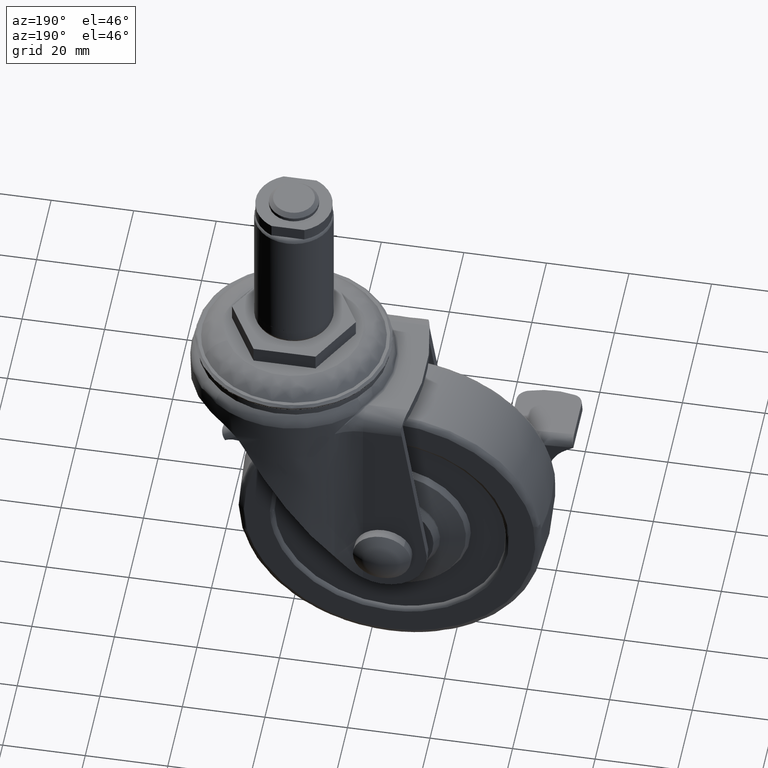
[diagram: clean part render]
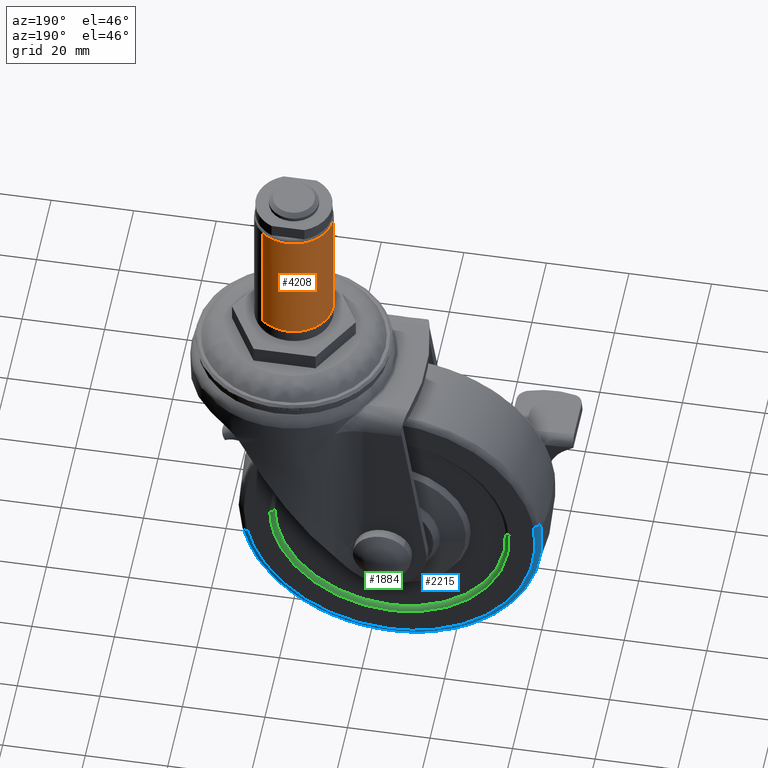
[diagram: same view with three faces highlighted in distinct colors, each labeled with its STEP entity id]
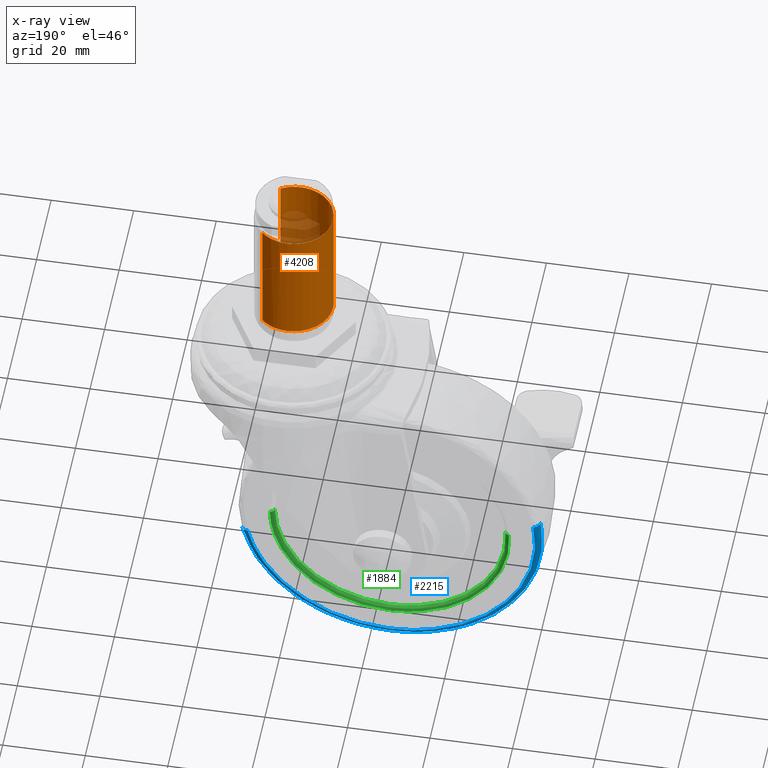
[diagram: x-ray of the same camera — body ghosted, the three highlighted faces saturated]
A machine part, auxiliary view with three faces highlighted in distinct colors.
The next image is the same camera in x-ray (body ghosted, the three faces saturated) — at least one of them is partly hidden behind the body in this view.
Their STEP definitions:

[orange] entity #4208 — the highlighted face is a freeform B-spline surface patch.
#4074=CARTESIAN_POINT('',(4.769181469671122,-8.216131273864388,34.650000002457759));
#4075=CARTESIAN_POINT('',(-1.300864478249105,-11.739584063252144,34.650000002457766));
#4076=CARTESIAN_POINT('',(-6.452255460974772,-6.972682730939943,34.650000002457759));
#4077=CARTESIAN_POINT('',(-13.424938191914716,-0.520427269965171,34.650000002457759));
#4078=CARTESIAN_POINT('',(-6.972682730939943,6.452255460974772,34.650000002457759));
#4079=CARTESIAN_POINT('',(-0.520427269965171,13.424938191914716,34.650000002457759));
#4080=CARTESIAN_POINT('',(6.452255460974772,6.972682730939943,34.650000002457759));
#4081=CARTESIAN_POINT('',(4.769181469671122,-8.216131273864388,3.131249999938439));
#4082=CARTESIAN_POINT('',(-1.300864478249105,-11.739584063252144,3.131249999938440));
#4083=CARTESIAN_POINT('',(-6.452255460974772,-6.972682730939943,3.131249999938440));
#4084=CARTESIAN_POINT('',(-13.424938191914716,-0.520427269965171,3.131249999938440));
#4085=CARTESIAN_POINT('',(-6.972682730939943,6.452255460974772,3.131249999938440));
#4086=CARTESIAN_POINT('',(-0.520427269965171,13.424938191914716,3.131249999938440));
#4087=CARTESIAN_POINT('',(6.452255460974772,6.972682730939943,3.131249999938440));
#4095=(BOUNDED_SURFACE()B_SPLINE_SURFACE(2,1,((#4074,#4081),(#4075,#4082),(#4076,#4083),(#4077,#4084),(#4078,#4085),(#4079,#4086),(#4080,#4087)),.UNSPECIFIED.,.F.,.F.,.U.)B_SPLINE_SURFACE_WITH_KNOTS((3,2,2,3),(2,2),(0.0,12.592085668725220,28.332192754631759,44.072299840538292),(0.0,31.518750002519319),.UNSPECIFIED.)GEOMETRIC_REPRESENTATION_ITEM()RATIONAL_B_SPLINE_SURFACE(((0.906274169979695,0.906274169979695),(0.765685424949238,0.765685424949238),(1.0,1.0),(0.707106781186548,0.707106781186548),(1.0,1.0),(0.707106781186548,0.707106781186548),(1.0,1.0)))REPRESENTATION_ITEM('')SURFACE());
#4096=CARTESIAN_POINT('',(4.769181486978870,-8.216130928227312,3.899999999999887));
#4097=VERTEX_POINT('',#4096);
#4098=CARTESIAN_POINT('',(-0.000001336962201,-9.499995000000007,3.899999999999889));
#4099=VERTEX_POINT('',#4098);
#4100=CARTESIAN_POINT('',(4.769181486978870,-8.216130928227312,3.899999999999887));
#4101=CARTESIAN_POINT('',(4.274068669553174,-8.503557439264624,3.899999999999865));
#4102=CARTESIAN_POINT('',(2.757907993458627,-9.209183270811405,3.899999999999938));
#4103=CARTESIAN_POINT('',(1.093102808955733,-9.500892481963195,3.899999999999859));
#4104=CARTESIAN_POINT('',(-0.000001336962201,-9.499995000000007,3.899999999999889));
#4105=B_SPLINE_CURVE_WITH_KNOTS('',3,(#4100,#4101,#4102,#4103,#4104),.UNSPECIFIED.,.F.,.U.,(4,1,4),(0.000000022680542,1.717525443122228,4.996410118853924),.UNSPECIFIED.);
#4106=EDGE_CURVE('',#4097,#4099,#4105,.T.);
#4107=ORIENTED_EDGE('',*,*,#4106,.F.);
#4108=CARTESIAN_POINT('',(4.769181341799346,-8.216131348089554,33.900000001508559));
#4109=VERTEX_POINT('',#4108);
#4110=CARTESIAN_POINT('',(4.769181341799346,-8.216131348089554,33.900000001508559));
#4111=CARTESIAN_POINT('',(4.769181486978870,-8.216130928227312,3.899999999999887));
#4112=QUASI_UNIFORM_CURVE('',1,(#4110,#4111),.UNSPECIFIED.,.F.,.U.);
#4113=EDGE_CURVE('',#4109,#4097,#4112,.T.);
#4114=ORIENTED_EDGE('',*,*,#4113,.F.);
#4115=CARTESIAN_POINT('',(-9.499995000000101,0.0,33.899999999999999));
#4116=VERTEX_POINT('',#4115);
#4117=CARTESIAN_POINT('',(4.769181341799346,-8.216131348089554,33.900000001508559));
#4118=CARTESIAN_POINT('',(4.141176161958145,-8.580826725709670,33.900000001347962));
#4119=CARTESIAN_POINT('',(3.088198529632862,-9.039825398080534,33.900000001098569));
#4120=CARTESIAN_POINT('',(1.367706738797754,-9.444587437297393,33.900000000735702));
#4121=CARTESIAN_POINT('',(-0.504491098449479,-9.570974776509496,33.900000000381603));
#4122=CARTESIAN_POINT('',(-2.724765889683806,-9.208033323142564,33.900000000028207));
#4123=CARTESIAN_POINT('',(-5.019608192661912,-8.194348691899199,33.899999999745589));
#4124=CARTESIAN_POINT('',(-6.855142791543369,-6.715923628427450,33.899999999606322));
#4125=CARTESIAN_POINT('',(-8.207257125943288,-4.925949209454362,33.899999999594492));
#4126=CARTESIAN_POINT('',(-9.216708898123610,-2.748862296472859,33.899999999694700));
#4127=CARTESIAN_POINT('',(-9.500582273796544,-1.037508678978437,33.899999999865273));
#4128=CARTESIAN_POINT('',(-9.499995000000101,0.0,33.899999999999999));
#4129=B_SPLINE_CURVE_WITH_KNOTS('',3,(#4117,#4118,#4119,#4120,#4121,#4122,#4123,#4124,#4125,#4126,#4127,#4128),.UNSPECIFIED.,.F.,.U.,(4,1,1,1,1,1,1,1,1,4),(0.000000248313764,2.178635957597741,3.423570252128243,5.291024068470502,7.780974131034943,10.115146189629989,12.760649374677129,14.783727150239359,16.806810351803360,19.919132221207750),.UNSPECIFIED.);
#4130=EDGE_CURVE('',#4109,#4116,#4129,.T.);
#4131=ORIENTED_EDGE('',*,*,#4130,.T.);
#4132=CARTESIAN_POINT('',(-0.059563223094041,9.499808272932752,33.899999999999991));
#4133=VERTEX_POINT('',#4132);
#4134=CARTESIAN_POINT('',(-9.499995000000101,0.0,33.899999999999999));
#4135=CARTESIAN_POINT('',(-9.500146718215198,0.735420486591301,33.899999999907443));
#4136=CARTESIAN_POINT('',(-9.337362622613245,2.128747372716624,33.899999999751763));
#4137=CARTESIAN_POINT('',(-8.618711146170970,4.186140378136217,33.899999999583670));
#4138=CARTESIAN_POINT('',(-7.620829382416105,5.769709252508813,33.899999999510932));
#4139=CARTESIAN_POINT('',(-6.296212998182226,7.186693865376783,33.899999999499222));
#4140=CARTESIAN_POINT('',(-4.885327675336156,8.227880486037345,33.899999999548108));
#4141=CARTESIAN_POINT('',(-2.728111914698071,9.211990608157082,33.899999999697101));
#4142=CARTESIAN_POINT('',(-1.104700220990295,9.493886903165866,33.899999999868307));
#4143=CARTESIAN_POINT('',(-0.059563223094041,9.499808272932752,33.899999999999991));
#4144=B_SPLINE_CURVE_WITH_KNOTS('',3,(#4134,#4135,#4136,#4137,#4138,#4139,#4140,#4141,#4142,#4143),.UNSPECIFIED.,.F.,.U.,(4,1,1,1,1,1,1,4),(0.000000235649525,2.206236845509212,4.180248055931889,6.502647345185643,7.779886265590806,9.986121165872739,11.727915866302840,14.863086153254560),.UNSPECIFIED.);
#4145=EDGE_CURVE('',#4116,#4133,#4144,.T.);
#4146=ORIENTED_EDGE('',*,*,#4145,.T.);
#4147=CARTESIAN_POINT('',(6.452255604566604,6.972682598065518,33.900000001147212));
#4148=VERTEX_POINT('',#4147);
#4149=CARTESIAN_POINT('',(-0.059563223094041,9.499808272932752,33.899999999999991));
#4150=CARTESIAN_POINT('',(0.946330226618710,9.506657642881908,33.900000000127129));
#4151=CARTESIAN_POINT('',(2.698666624165067,9.236332085627875,33.900000000384203));
#4152=CARTESIAN_POINT('',(4.881832415417041,8.237538422632968,33.900000000787621));
#4153=CARTESIAN_POINT('',(5.987459570027085,7.402858002038477,33.900000001034009));
#4154=CARTESIAN_POINT('',(6.452255604566604,6.972682598065518,33.900000001147212));
#4155=B_SPLINE_CURVE_WITH_KNOTS('',3,(#4149,#4150,#4151,#4152,#4153,#4154),.UNSPECIFIED.,.F.,.U.,(4,1,1,4),(0.000000054071628,3.017597338974017,5.252831020079715,7.152793934455944),.UNSPECIFIED.);
#4156=EDGE_CURVE('',#4133,#4148,#4155,.T.);
#4157=ORIENTED_EDGE('',*,*,#4156,.T.);
#4158=CARTESIAN_POINT('',(6.452255817626631,6.972682854930291,3.899999999999892));
#4159=VERTEX_POINT('',#4158);
#4160=CARTESIAN_POINT('',(6.452255604566604,6.972682598065518,33.900000001147212));
#4161=CARTESIAN_POINT('',(6.452255817626631,6.972682854930291,3.899999999999892));
#4162=QUASI_UNIFORM_CURVE('',1,(#4160,#4161),.UNSPECIFIED.,.F.,.U.);
#4163=EDGE_CURVE('',#4148,#4159,#4162,.T.);
#4164=ORIENTED_EDGE('',*,*,#4163,.T.);
#4165=CARTESIAN_POINT('',(0.000001336962216,9.499995000000006,3.899999999999890));
#4166=VERTEX_POINT('',#4165);
#4167=CARTESIAN_POINT('',(0.000001336962216,9.499995000000006,3.899999999999890));
#4168=CARTESIAN_POINT('',(0.997531203120104,9.500485727553654,3.899999999999893));
#4169=CARTESIAN_POINT('',(2.733602532879831,9.223985902699637,3.899999999999890));
#4170=CARTESIAN_POINT('',(4.895670283175384,8.227807200933770,3.899999999999892));
#4171=CARTESIAN_POINT('',(5.991338884937635,7.399290102774067,3.899999999999893));
#4172=CARTESIAN_POINT('',(6.452255817626631,6.972682854930291,3.899999999999892));
#4173=B_SPLINE_CURVE_WITH_KNOTS('',3,(#4167,#4168,#4169,#4170,#4171,#4172),.UNSPECIFIED.,.F.,.U.,(4,1,1,4),(0.000000051872082,2.992471420807269,5.209087422982731,7.093228068639070),.UNSPECIFIED.);
#4174=EDGE_CURVE('',#4166,#4159,#4173,.T.);
#4175=ORIENTED_EDGE('',*,*,#4174,.F.);
#4176=CARTESIAN_POINT('',(-9.499995000000101,0.0,3.899999999999890));
#4177=VERTEX_POINT('',#4176);
#4178=CARTESIAN_POINT('',(-9.499995000000101,0.0,3.899999999999890));
#4179=CARTESIAN_POINT('',(-9.500054784021966,0.582901140381218,3.899999999999891));
#4180=CARTESIAN_POINT('',(-9.392363768201626,1.748706303778089,3.899999999999890));
#4181=CARTESIAN_POINT('',(-8.892403640285540,3.513468462092856,3.899999999999903));
#4182=CARTESIAN_POINT('',(-8.109987735379812,5.044343996651572,3.899999999999871));
#4183=CARTESIAN_POINT('',(-7.001023672204652,6.501837054950181,3.899999999999891));
#4184=CARTESIAN_POINT('',(-5.610555105404063,7.762261000017270,3.899999999999938));
#4185=CARTESIAN_POINT('',(-3.841534804982536,8.764316567073257,3.899999999999794));
#4186=CARTESIAN_POINT('',(-1.943009018499521,9.365699333902086,3.900000000000065));
#4187=CARTESIAN_POINT('',(-0.660637385006432,9.500084154037989,3.899999999999739));
#4188=CARTESIAN_POINT('',(0.000001336962216,9.499995000000006,3.899999999999890));
#4189=B_SPLINE_CURVE_WITH_KNOTS('',3,(#4178,#4179,#4180,#4181,#4182,#4183,#4184,#4185,#4186,#4187,#4188),.UNSPECIFIED.,.F.,.U.,(4,1,1,1,1,1,1,1,4),(0.000000240071126,1.748703716327388,3.497495723517352,5.479420213033635,6.878467202963532,8.976857376453175,11.075403778381670,12.940739597681651,14.922651636837450),.UNSPECIFIED.);
#4190=EDGE_CURVE('',#4177,#4166,#4189,.T.);
#4191=ORIENTED_EDGE('',*,*,#4190,.F.);
#4192=CARTESIAN_POINT('',(-0.000001336962201,-9.499995000000007,3.899999999999889));
#4193=CARTESIAN_POINT('',(-0.582901105051855,-9.500048248691007,3.899999999999895));
#4194=CARTESIAN_POINT('',(-1.748715537342231,-9.392386347876620,3.899999999999881));
#4195=CARTESIAN_POINT('',(-3.213054887776973,-8.977446374107140,3.899999999999893));
#4196=CARTESIAN_POINT('',(-4.596914836871737,-8.353770988521390,3.899999999999894));
#4197=CARTESIAN_POINT('',(-6.140808052478302,-7.363310364902771,3.899999999999877));
#4198=CARTESIAN_POINT('',(-7.584204841038685,-5.865498874320494,3.899999999999917));
#4199=CARTESIAN_POINT('',(-8.716059807501589,-3.950428748593194,3.899999999999807));
#4200=CARTESIAN_POINT('',(-9.353541228016075,-2.059613548293843,3.900000000000102));
#4201=CARTESIAN_POINT('',(-9.500076793230154,-0.660635596550468,3.899999999999616));
#4202=CARTESIAN_POINT('',(-9.499995000000101,0.0,3.899999999999890));
#4203=B_SPLINE_CURVE_WITH_KNOTS('',3,(#4192,#4193,#4194,#4195,#4196,#4197,#4198,#4199,#4200,#4201,#4202),.UNSPECIFIED.,.F.,.U.,(4,1,1,1,1,1,1,1,4),(0.000000240539473,1.748703540100646,3.497495370638807,4.546756055098042,6.295551446684568,8.976856469234436,10.725653232873711,12.940738291633890,14.922650129759990),.UNSPECIFIED.);
#4204=EDGE_CURVE('',#4099,#4177,#4203,.T.);
#4205=ORIENTED_EDGE('',*,*,#4204,.F.);
#4206=EDGE_LOOP('',(#4107,#4114,#4131,#4146,#4157,#4164,#4175,#4191,#4205));
#4207=FACE_OUTER_BOUND('',#4206,.T.);
#4208=ADVANCED_FACE('',(#4207),#4095,.T.);

[blue] entity #2215 — the highlighted face is a freeform B-spline surface patch.
#2009=CARTESIAN_POINT('',(9.448117847054395,10.500000000000000,-65.224805257073228));
#2010=VERTEX_POINT('',#2009);
#2030=CARTESIAN_POINT('',(-59.833513237007033,10.500000000000000,-51.758657254913828));
#2031=VERTEX_POINT('',#2030);
#2047=CARTESIAN_POINT('',(-61.295924195156971,9.230755313980158,-51.517605506294359));
#2048=VERTEX_POINT('',#2047);
#2049=CARTESIAN_POINT('',(-59.833513237007033,10.500000000000000,-51.758657254913828));
#2050=CARTESIAN_POINT('',(-60.030081455849789,10.500240622848811,-51.726256572608492));
#2051=CARTESIAN_POINT('',(-60.357412637262449,10.432832396916741,-51.672302003140942));
#2052=CARTESIAN_POINT('',(-60.794362595935183,10.172804915954860,-51.600278779438867));
#2053=CARTESIAN_POINT('',(-61.134445141648527,9.787454207991528,-51.544222380330872));
#2054=CARTESIAN_POINT('',(-61.265908839055960,9.427634299301170,-51.522552989799998));
#2055=CARTESIAN_POINT('',(-61.295924195156971,9.230755313980158,-51.517605506294359));
#2056=B_SPLINE_CURVE_WITH_KNOTS('',3,(#2049,#2050,#2051,#2052,#2053,#2054,#2055),.UNSPECIFIED.,.F.,.U.,(4,1,1,1,4),(0.000000283372818,0.597579785353316,0.995961629264811,1.527112898074983,2.124692400055918),.UNSPECIFIED.);
#2057=EDGE_CURVE('',#2031,#2048,#2056,.T.);
#2077=CARTESIAN_POINT('',(10.894347431094950,9.230757639118954,-65.549100780943292));
#2078=VERTEX_POINT('',#2077);
#2097=CARTESIAN_POINT('',(9.448117847054395,10.500000000000000,-65.224805257073228));
#2098=CARTESIAN_POINT('',(9.642502762185190,10.500228972779020,-65.268393189846023));
#2099=CARTESIAN_POINT('',(9.966223063831121,10.432844347081289,-65.340982663859052));
#2100=CARTESIAN_POINT('',(10.417172657645370,10.161533158113070,-65.442101418708091));
#2101=CARTESIAN_POINT('',(10.746438869680590,9.767067399372600,-65.515934480832684));
#2102=CARTESIAN_POINT('',(10.867859493712750,9.405710540079106,-65.543161254034587));
#2103=CARTESIAN_POINT('',(10.894347431094950,9.230757639118954,-65.549100780943292));
#2104=B_SPLINE_CURVE_WITH_KNOTS('',3,(#2097,#2098,#2099,#2100,#2101,#2102,#2103),.UNSPECIFIED.,.F.,.U.,(4,1,1,1,4),(0.000000283371518,0.597578905622563,0.995960163069954,1.593517025023970,2.124689272241588),.UNSPECIFIED.);
#2105=EDGE_CURVE('',#2010,#2078,#2104,.T.);
#2110=CARTESIAN_POINT('',(-59.738644666114823,10.496915305485791,-51.774294607361732));
#2111=CARTESIAN_POINT('',(-65.464676058753142,10.496915305485791,-86.512939273476576));
#2112=CARTESIAN_POINT('',(-30.726031392638351,10.496915305485791,-92.238970666114909));
#2113=CARTESIAN_POINT('',(2.079527195297928,10.496915305485794,-97.646368108732787));
#2114=CARTESIAN_POINT('',(9.354298914362079,10.496915305485793,-65.203767753575448));
#2115=CARTESIAN_POINT('',(-61.177610780741297,10.590589013549256,-51.537107312794340));
#2116=CARTESIAN_POINT('',(-67.140829467947015,10.590589013549254,-87.714718093535623));
#2117=CARTESIAN_POINT('',(-30.963218687205750,10.590589013549256,-93.677936780741376));
#2118=CARTESIAN_POINT('',(3.201232500978692,10.590589013549259,-99.309322860884762));
#2119=CARTESIAN_POINT('',(10.777344416126747,10.590589013549261,-65.522864591000612));
#2120=CARTESIAN_POINT('',(-61.307522984463461,9.135143951024570,-51.515693657657543));
#2121=CARTESIAN_POINT('',(-67.292155326806011,9.135143951024570,-87.823216642121011));
#2122=CARTESIAN_POINT('',(-30.984632342342550,9.135143951024570,-93.807848984463561));
#2123=CARTESIAN_POINT('',(3.302501882312011,9.135143951024570,-99.459457123496207));
#2124=CARTESIAN_POINT('',(10.905819280998148,9.135143951024570,-65.551673173029968));
#2132=(BOUNDED_SURFACE()B_SPLINE_SURFACE(2,2,((#2110,#2115,#2120),(#2111,#2116,#2121),(#2112,#2117,#2122),(#2113,#2118,#2123),(#2114,#2119,#2124)),.UNSPECIFIED.,.F.,.F.,.U.)B_SPLINE_SURFACE_WITH_KNOTS((3,2,3),(3,3),(0.0,60.968005167688133,119.497290128668690),(0.0,2.439580240376861),.UNSPECIFIED.)GEOMETRIC_REPRESENTATION_ITEM()RATIONAL_B_SPLINE_SURFACE(((0.918059677552618,0.657097981405909,0.916729916162790),(0.649166223531392,0.464638438556110,0.648225940235284),(0.918059677552618,0.657097981405909,0.916729916162790),(0.659921961692241,0.472336820270102,0.658966099272384),(0.897408660283788,0.642317088515044,0.896108810811558)))REPRESENTATION_ITEM('')SURFACE());
#2133=CARTESIAN_POINT('',(-25.0,10.500000000000000,-92.803872603993199));
#2134=VERTEX_POINT('',#2133);
#2135=CARTESIAN_POINT('',(-25.0,10.500000000000000,-92.803872603993199));
#2136=CARTESIAN_POINT('',(-23.324215287415701,10.500000000000011,-92.803900322545630));
#2137=CARTESIAN_POINT('',(-19.413966564470421,10.499999999999970,-92.525160140470845));
#2138=CARTESIAN_POINT('',(-14.202503857625549,10.500000000000050,-91.264482011258835));
#2139=CARTESIAN_POINT('',(-9.205062456126397,10.500000000000011,-89.192886774209043));
#2140=CARTESIAN_POINT('',(-4.364784873134722,10.499999999999940,-86.374020283694492));
#2141=CARTESIAN_POINT('',(0.200641664249850,10.500000000000179,-82.496368365516361));
#2142=CARTESIAN_POINT('',(3.597111959413222,10.499999999999670,-78.358408266493058));
#2143=CARTESIAN_POINT('',(5.853699138869583,10.500000000000210,-74.786145593413309));
#2144=CARTESIAN_POINT('',(7.898245293284982,10.499999999999661,-70.665497313534274));
#2145=CARTESIAN_POINT('',(8.973054797553132,10.500000000000460,-67.344567118010843));
#2146=CARTESIAN_POINT('',(9.448117847054395,10.500000000000000,-65.224805257073228));
#2147=B_SPLINE_CURVE_WITH_KNOTS('',3,(#2135,#2136,#2137,#2138,#2139,#2140,#2141,#2142,#2143,#2144,#2145,#2146),.UNSPECIFIED.,.F.,.U.,(4,1,1,1,1,1,1,1,1,4),(0.000000086454165,5.027386327994080,11.730613542975730,16.013231325625110,21.226882930670481,28.488603251273052,33.888429918967709,37.240052843429581,41.150283038063073,47.667256493899970),.UNSPECIFIED.);
#2148=EDGE_CURVE('',#2134,#2010,#2147,.T.);
#2149=ORIENTED_EDGE('',*,*,#2148,.T.);
#2150=ORIENTED_EDGE('',*,*,#2105,.T.);
#2151=CARTESIAN_POINT('',(-25.0,9.230769230769241,-94.286014824608401));
#2152=VERTEX_POINT('',#2151);
#2153=CARTESIAN_POINT('',(-25.0,9.230769230769241,-94.286014824608401));
#2154=CARTESIAN_POINT('',(-22.930475375956700,9.230769236804825,-94.286181185459142));
#2155=CARTESIAN_POINT('',(-19.632251891279100,9.230769132654956,-94.006897920833964));
#2156=CARTESIAN_POINT('',(-14.449095781213330,9.230768678405935,-92.854007673324915));
#2157=CARTESIAN_POINT('',(-9.939679916825652,9.230768019965737,-91.204160265475011));
#2158=CARTESIAN_POINT('',(-5.322713731877027,9.230767017038119,-88.707089286809847));
#2159=CARTESIAN_POINT('',(-1.439951526310229,9.230765881797085,-85.890104002636846));
#2160=CARTESIAN_POINT('',(2.319582683828077,9.230764439938415,-82.320583477760039));
#2161=CARTESIAN_POINT('',(5.578268663904385,9.230762771595899,-78.198102611371169));
#2162=CARTESIAN_POINT('',(8.791912335745248,9.230760489100392,-72.566868318128371));
#2163=CARTESIAN_POINT('',(10.286470031651030,9.230758741778576,-68.262822631787827));
#2164=CARTESIAN_POINT('',(10.894347431094950,9.230757639118954,-65.549100780943292));
#2165=B_SPLINE_CURVE_WITH_KNOTS('',3,(#2153,#2154,#2155,#2156,#2157,#2158,#2159,#2160,#2161,#2162,#2163,#2164),.UNSPECIFIED.,.F.,.U.,(4,1,1,1,1,1,1,1,1,4),(0.000000084547054,6.208546350610291,9.894880500244248,15.909437257245131,20.565863147434889,25.610258478200532,30.266690283069892,36.087236359181858,41.325732495700763,49.668462223385163),.UNSPECIFIED.);
#2166=EDGE_CURVE('',#2152,#2078,#2165,.T.);
#2167=ORIENTED_EDGE('',*,*,#2166,.F.);
#2168=CARTESIAN_POINT('',(-61.539659336711949,9.230755759686105,-53.252932426504273));
#2169=VERTEX_POINT('',#2168);
#2170=CARTESIAN_POINT('',(-61.539659336711949,9.230755759686105,-53.252932426504273));
#2171=CARTESIAN_POINT('',(-61.735581029046102,9.230756036276178,-54.937976688555821));
#2172=CARTESIAN_POINT('',(-61.901328681915480,9.230756660913375,-58.496985987810767));
#2173=CARTESIAN_POINT('',(-61.352295911296252,9.230757769005669,-64.059845319919106));
#2174=CARTESIAN_POINT('',(-59.728033698324339,9.230759167978246,-70.253842188208040));
#2175=CARTESIAN_POINT('',(-57.024692948617322,9.230760657557672,-75.981772269611938));
#2176=CARTESIAN_POINT('',(-53.750790814821151,9.230762038903905,-80.610511213776576));
#2177=CARTESIAN_POINT('',(-50.244039728617871,9.230763308276774,-84.420368133504496));
#2178=CARTESIAN_POINT('',(-45.674905464666921,9.230764741667265,-88.179948474379714));
#2179=CARTESIAN_POINT('',(-40.555192667898581,9.230766093406579,-91.003311937754148));
#2180=CARTESIAN_POINT('',(-35.614230816555533,9.230767228353324,-92.801854983506871));
#2181=CARTESIAN_POINT('',(-30.816131486319051,9.230768223062166,-93.961713663580809));
#2182=CARTESIAN_POINT('',(-27.181082948316710,9.230768875182406,-94.286241713769286));
#2183=CARTESIAN_POINT('',(-25.0,9.230769230769241,-94.286014824608401));
#2184=B_SPLINE_CURVE_WITH_KNOTS('',3,(#2170,#2171,#2172,#2173,#2174,#2175,#2176,#2177,#2178,#2179,#2180,#2181,#2182,#2183),.UNSPECIFIED.,.F.,.U.,(4,1,1,1,1,1,1,1,1,1,1,4),(0.000000141693874,5.089196690614344,10.663069850829469,16.721673767069920,24.234340966993230,29.565899659797719,33.685611970444043,39.744223093194137,47.256899337951438,51.134415904930961,55.496615459773423,62.039826390163888),.UNSPECIFIED.);
#2185=EDGE_CURVE('',#2169,#2152,#2184,.T.);
#2186=ORIENTED_EDGE('',*,*,#2185,.F.);
#2187=CARTESIAN_POINT('',(-61.295924195156971,9.230755313980158,-51.517605506294359));
#2188=CARTESIAN_POINT('',(-61.390933067325342,9.230755462684023,-52.094002207384150));
#2189=CARTESIAN_POINT('',(-61.472209776579277,9.230755611309434,-52.672665441587483));
#2190=CARTESIAN_POINT('',(-61.539659336711949,9.230755759686105,-53.252932426504273));
#2191=B_SPLINE_CURVE_WITH_KNOTS('',3,(#2187,#2188,#2189,#2190),.UNSPECIFIED.,.F.,.U.,(4,4),(7.187095E-011,1.752528542908477),.UNSPECIFIED.);
#2192=EDGE_CURVE('',#2048,#2169,#2191,.T.);
#2193=ORIENTED_EDGE('',*,*,#2192,.F.);
#2194=ORIENTED_EDGE('',*,*,#2057,.F.);
#2195=CARTESIAN_POINT('',(-59.833513237007033,10.500000000000000,-51.758657254913828));
#2196=CARTESIAN_POINT('',(-60.261798491316938,10.500000000000000,-54.354217780690462));
#2197=CARTESIAN_POINT('',(-60.521686954550709,10.500000000000000,-59.401047784718997));
#2198=CARTESIAN_POINT('',(-59.450441870003267,10.500000000000030,-65.964875728616576));
#2199=CARTESIAN_POINT('',(-57.709577205664473,10.499999999999980,-71.027221569567132));
#2200=CARTESIAN_POINT('',(-55.879411671110908,10.500000000000011,-74.754220476835897));
#2201=CARTESIAN_POINT('',(-53.444158741780498,10.500000000000080,-78.597279543848742));
#2202=CARTESIAN_POINT('',(-50.402201827399452,10.499999999999959,-82.206393279171891));
#2203=CARTESIAN_POINT('',(-46.983279702626923,10.500000000000020,-85.213532139405430));
#2204=CARTESIAN_POINT('',(-43.720128754338880,10.500000000000000,-87.509068165848461));
#2205=CARTESIAN_POINT('',(-39.812663101267340,10.500000000000011,-89.684945976248116));
#2206=CARTESIAN_POINT('',(-35.473945587051197,10.499999999999989,-91.329998605206541));
#2207=CARTESIAN_POINT('',(-30.340903260248101,10.499999999999901,-92.515153866137723));
#2208=CARTESIAN_POINT('',(-27.072630458559221,10.500000000000590,-92.804083160787087));
#2209=CARTESIAN_POINT('',(-25.0,10.500000000000000,-92.803872603993199));
#2210=B_SPLINE_CURVE_WITH_KNOTS('',3,(#2195,#2196,#2197,#2198,#2199,#2200,#2201,#2202,#2203,#2204,#2205,#2206,#2207,#2208,#2209),.UNSPECIFIED.,.F.,.U.,(4,1,1,1,1,1,1,1,1,1,1,1,4),(0.000000149885565,7.891878159827854,15.066373248225300,19.849363952853810,23.914930885021409,27.502146108034498,33.480758998865902,38.024610221829477,41.133577352782922,45.438264994497899,51.416996582176893,55.004231643998700,61.222085247623582),.UNSPECIFIED.);
#2211=EDGE_CURVE('',#2031,#2134,#2210,.T.);
#2212=ORIENTED_EDGE('',*,*,#2211,.T.);
#2213=EDGE_LOOP('',(#2149,#2150,#2167,#2186,#2193,#2194,#2212));
#2214=FACE_OUTER_BOUND('',#2213,.T.);
#2215=ADVANCED_FACE('',(#2214),#2132,.T.);

[green] entity #1884 — the highlighted face is a freeform B-spline surface patch.
#1757=CARTESIAN_POINT('',(-52.934253727549731,9.430462741963025,-55.547627698123634));
#1758=CARTESIAN_POINT('',(-52.990139060085227,9.430462741963027,-56.347093266970170));
#1759=CARTESIAN_POINT('',(-53.000209691471383,9.430462741963027,-57.148446465346005));
#1760=CARTESIAN_POINT('',(-53.352089226125472,9.430462741963028,-85.148656156817381));
#1761=CARTESIAN_POINT('',(-25.351879534654088,9.430462741963027,-85.500535691471470));
#1762=CARTESIAN_POINT('',(2.648330156817296,9.430462741963028,-85.852415226125572));
#1763=CARTESIAN_POINT('',(3.000209691471389,9.430462741963027,-57.852205534654182));
#1764=CARTESIAN_POINT('',(-52.854490156821186,10.577540820716564,-55.553203440029343));
#1765=CARTESIAN_POINT('',(-52.910215914172838,10.577540820716566,-56.350386211953222));
#1766=CARTESIAN_POINT('',(-52.920257789841116,10.577540820716562,-57.149451223462130));
#1767=CARTESIAN_POINT('',(-53.271132566379094,10.577540820716564,-85.069709013303239));
#1768=CARTESIAN_POINT('',(-25.350874776537974,10.577540820716562,-85.420583789841217));
#1769=CARTESIAN_POINT('',(2.569383013303143,10.577540820716564,-85.771458566379181));
#1770=CARTESIAN_POINT('',(2.920257789841124,10.577540820716562,-57.851200776538050));
#1771=CARTESIAN_POINT('',(-53.998775637172493,10.497579145321160,-55.473214035761110));
#1772=CARTESIAN_POINT('',(-54.056790654699441,10.497579145321161,-56.303145734912285));
#1773=CARTESIAN_POINT('',(-54.067245058920882,10.497579145321161,-57.135036997606484));
#1774=CARTESIAN_POINT('',(-54.432534061314492,10.497579145321161,-86.202282056527338));
#1775=CARTESIAN_POINT('',(-25.365289002393617,10.497579145321161,-86.567571058920976));
#1776=CARTESIAN_POINT('',(3.701956056527258,10.497579145321161,-86.932860061314571));
#1777=CARTESIAN_POINT('',(4.067245058920871,10.497579145321161,-57.865615002393703));
#1785=(BOUNDED_SURFACE()B_SPLINE_SURFACE(2,2,((#1757,#1764,#1771),(#1758,#1765,#1772),(#1759,#1766,#1773),(#1760,#1767,#1774),(#1761,#1768,#1775),(#1762,#1769,#1776),(#1763,#1770,#1777)),.UNSPECIFIED.,.F.,.F.,.U.)B_SPLINE_SURFACE_WITH_KNOTS((3,2,2,3),(3,3),(0.0,1.926557815617211,50.090549138808989,98.254540462000776),(0.0,1.822377915243560),.UNSPECIFIED.)GEOMETRIC_REPRESENTATION_ITEM()RATIONAL_B_SPLINE_SURFACE(((0.889999360457936,0.584039094136759,0.890000583741084),(0.899812932149089,0.590478997102305,0.899814168920760),(0.910479857015754,0.597478891049584,0.910481108448861),(0.643806481029597,0.422481375476979,0.643807365926434),(0.910479857015754,0.597478891049584,0.910481108448861),(0.643806481029597,0.422481375476979,0.643807365926434),(0.910479857015754,0.597478891049584,0.910481108448861)))REPRESENTATION_ITEM('')SURFACE());
#1786=CARTESIAN_POINT('',(-52.931838867527439,9.500000003847177,-55.547794955820898));
#1787=VERTEX_POINT('',#1786);
#1788=CARTESIAN_POINT('',(-25.0,9.500000000000000,-85.500326000000101));
#1789=VERTEX_POINT('',#1788);
#1790=CARTESIAN_POINT('',(-52.931838867527439,9.500000003847177,-55.547794955820898));
#1791=CARTESIAN_POINT('',(-53.065619433208489,9.500000003418704,-57.457156063834432));
#1792=CARTESIAN_POINT('',(-52.974565329367913,9.500000002825434,-60.221494323138693));
#1793=CARTESIAN_POINT('',(-52.159373487480892,9.500000001928836,-64.698288711653689));
#1794=CARTESIAN_POINT('',(-50.907578398494017,9.500000001229372,-68.461460227646754));
#1795=CARTESIAN_POINT('',(-48.799864721296721,9.500000000566125,-72.434136428677462));
#1796=CARTESIAN_POINT('',(-46.142845152461440,9.500000000030452,-76.063717374791679));
#1797=CARTESIAN_POINT('',(-42.774867630462197,9.499999999642798,-79.323219961216779));
#1798=CARTESIAN_POINT('',(-38.942661315149472,9.499999999448473,-81.904372735224726));
#1799=CARTESIAN_POINT('',(-34.661350016321897,9.499999999416543,-83.931705748909891));
#1800=CARTESIAN_POINT('',(-30.024304124455369,9.499999999581567,-85.210701452868420));
#1801=CARTESIAN_POINT('',(-26.555135433106290,9.499999999851585,-85.500421397434977));
#1802=CARTESIAN_POINT('',(-25.0,9.500000000000000,-85.500326000000101));
#1803=B_SPLINE_CURVE_WITH_KNOTS('',3,(#1790,#1791,#1792,#1793,#1794,#1795,#1796,#1797,#1798,#1799,#1800,#1801,#1802),.UNSPECIFIED.,.F.,.U.,(4,1,1,1,1,1,1,1,1,1,4),(0.000000147717586,5.742042352486095,8.254206924898014,13.637401732863740,17.585111065895379,21.712201770461380,27.095302949848289,31.581315186037351,35.529009829347352,41.271073837785941,45.936492710924952),.UNSPECIFIED.);
#1804=EDGE_CURVE('',#1787,#1789,#1803,.T.);
#1805=ORIENTED_EDGE('',*,*,#1804,.T.);
#1806=CARTESIAN_POINT('',(2.997789237705752,9.500000003847227,-57.852175116821243));
#1807=VERTEX_POINT('',#1806);
#1808=CARTESIAN_POINT('',(-25.0,9.500000000000000,-85.500326000000101));
#1809=CARTESIAN_POINT('',(-22.954790396707139,9.499999999999961,-85.500725903739379));
#1810=CARTESIAN_POINT('',(-20.057648336629651,9.500000000044341,-85.181405975970520));
#1811=CARTESIAN_POINT('',(-15.886157597564520,9.500000000201787,-84.050285715714068));
#1812=CARTESIAN_POINT('',(-12.192042240150929,9.500000000410953,-82.546989468474209));
#1813=CARTESIAN_POINT('',(-8.650249943993632,9.500000000715774,-80.356412658705310));
#1814=CARTESIAN_POINT('',(-5.473602843485839,9.500000001088111,-77.680673883864628));
#1815=CARTESIAN_POINT('',(-2.707602656885926,9.500000001509632,-74.651264199180346));
#1816=CARTESIAN_POINT('',(-0.503474478591788,9.500000001982311,-71.254467294637749));
#1817=CARTESIAN_POINT('',(1.296802053844239,9.500000002520551,-67.386328412205344));
#1818=CARTESIAN_POINT('',(2.592762658232879,9.500000003112708,-63.130802614143512));
#1819=CARTESIAN_POINT('',(2.975161486818025,9.500000003594286,-59.669969216379307));
#1820=CARTESIAN_POINT('',(2.997789237705752,9.500000003847227,-57.852175116821243));
#1821=B_SPLINE_CURVE_WITH_KNOTS('',3,(#1808,#1809,#1810,#1811,#1812,#1813,#1814,#1815,#1816,#1817,#1818,#1819,#1820),.UNSPECIFIED.,.F.,.U.,(4,1,1,1,1,1,1,1,1,1,4),(0.000000130501725,6.135503571687401,8.691997582813364,12.952817597379269,18.065770547970690,21.133579171407138,25.394259410048068,30.336832860282630,33.234176391102892,38.176735887765247,43.630506125748447),.UNSPECIFIED.);
#1822=EDGE_CURVE('',#1789,#1807,#1821,.T.);
#1823=ORIENTED_EDGE('',*,*,#1822,.T.);
#1824=CARTESIAN_POINT('',(3.997710276772938,10.500000000000000,-57.864741156831592));
#1825=VERTEX_POINT('',#1824);
#1826=CARTESIAN_POINT('',(2.997789237705752,9.500000003847227,-57.852175116821243));
#1827=CARTESIAN_POINT('',(2.997654365060185,9.630921757200296,-57.852173421860932));
#1828=CARTESIAN_POINT('',(3.046684875364063,9.876248401438893,-57.852789589851177));
#1829=CARTESIAN_POINT('',(3.250918557456276,10.198999169493900,-57.855356201123541));
#1830=CARTESIAN_POINT('',(3.572484348654907,10.437443039616660,-57.859397328820002));
#1831=CARTESIAN_POINT('',(3.850418795243986,10.500205392894900,-57.862890140010727));
#1832=CARTESIAN_POINT('',(3.997710276772938,10.500000000000000,-57.864741156831592));
#1833=B_SPLINE_CURVE_WITH_KNOTS('',3,(#1826,#1827,#1828,#1829,#1830,#1831,#1832),.UNSPECIFIED.,.F.,.U.,(4,1,1,1,4),(0.000000516568160,0.392739982034457,0.736406606234397,1.129119835364306,1.570953880310607),.UNSPECIFIED.);
#1834=EDGE_CURVE('',#1807,#1825,#1833,.T.);
#1835=ORIENTED_EDGE('',*,*,#1834,.T.);
#1836=CARTESIAN_POINT('',(-25.0,10.500000000000000,-86.500326000000101));
#1837=VERTEX_POINT('',#1836);
#1838=CARTESIAN_POINT('',(-25.0,10.500000000000000,-86.500326000000101));
#1839=CARTESIAN_POINT('',(-23.587860002027551,10.500000000000011,-86.500399339097896));
#1840=CARTESIAN_POINT('',(-20.881283286599150,10.499999999999980,-86.302209043972624));
#1841=CARTESIAN_POINT('',(-16.270138127753569,10.500000000000020,-85.304982297963690));
#1842=CARTESIAN_POINT('',(-11.497337987583229,10.500000000000020,-83.379598849605031));
#1843=CARTESIAN_POINT('',(-7.249550979873590,10.499999999999989,-80.588414340923507));
#1844=CARTESIAN_POINT('',(-4.287743393937316,10.500000000000011,-77.886222244795249));
#1845=CARTESIAN_POINT('',(-1.999570479784648,10.500000000000011,-75.270108924803949));
#1846=CARTESIAN_POINT('',(0.475663782124535,10.499999999999980,-71.676019070489048));
#1847=CARTESIAN_POINT('',(2.507882382650587,10.500000000000030,-67.203019507189623));
#1848=CARTESIAN_POINT('',(3.717947180621059,10.499999999999950,-62.274485121769693));
#1849=CARTESIAN_POINT('',(3.979299624306082,10.500000000000050,-59.335605073157069));
#1850=CARTESIAN_POINT('',(3.997710276772938,10.500000000000000,-57.864741156831592));
#1851=B_SPLINE_CURVE_WITH_KNOTS('',3,(#1838,#1839,#1840,#1841,#1842,#1843,#1844,#1845,#1846,#1847,#1848,#1849,#1850),.UNSPECIFIED.,.F.,.U.,(4,1,1,1,1,1,1,1,1,1,4),(0.000000124042870,4.236413543847050,8.119837905952331,14.121503785759071,19.593619708803569,23.300387334352369,26.124719592044819,30.008137276096608,36.362820647879552,40.775805815243082,45.188738484695769),.UNSPECIFIED.);
#1852=EDGE_CURVE('',#1837,#1825,#1851,.T.);
#1853=ORIENTED_EDGE('',*,*,#1852,.F.);
#1854=CARTESIAN_POINT('',(-53.929404539597833,10.500000000000000,-55.478061704318961));
#1855=VERTEX_POINT('',#1854);
#1856=CARTESIAN_POINT('',(-53.929404539597833,10.500000000000000,-55.478061704318961));
#1857=CARTESIAN_POINT('',(-54.098605425550659,10.500000000000000,-57.888215930111180));
#1858=CARTESIAN_POINT('',(-53.880489920732813,10.500000000000020,-61.815427058508867));
#1859=CARTESIAN_POINT('',(-52.600861267707202,10.500000000000000,-66.682790816444736));
#1860=CARTESIAN_POINT('',(-50.872031837158559,10.499999999999980,-70.869802505929982));
#1861=CARTESIAN_POINT('',(-48.469456821811683,10.500000000000060,-74.800536574886550));
#1862=CARTESIAN_POINT('',(-45.326282051027832,10.499999999999980,-78.326129841586607));
#1863=CARTESIAN_POINT('',(-42.093760687113303,10.500000000000050,-81.040761808795381));
#1864=CARTESIAN_POINT('',(-38.832229383259921,10.499999999999970,-83.088928021469897));
#1865=CARTESIAN_POINT('',(-34.876355027171471,10.500000000000201,-84.885015279895711));
#1866=CARTESIAN_POINT('',(-30.327579878959771,10.499999999999369,-86.171147098373410));
#1867=CARTESIAN_POINT('',(-26.796537831812909,10.500000000000719,-86.500526195170735));
#1868=CARTESIAN_POINT('',(-25.0,10.500000000000000,-86.500326000000101));
#1869=B_SPLINE_CURVE_WITH_KNOTS('',3,(#1856,#1857,#1858,#1859,#1860,#1861,#1862,#1863,#1864,#1865,#1866,#1867,#1868),.UNSPECIFIED.,.F.,.U.,(4,1,1,1,1,1,1,1,1,1,4),(0.000000147879604,7.248035314510005,11.708422223810800,15.053710736502630,20.815040748906441,25.461105683252171,29.178124843152130,33.452626345396823,36.983747694392179,42.187497825355990,47.577081735878679),.UNSPECIFIED.);
#1870=EDGE_CURVE('',#1855,#1837,#1869,.T.);
#1871=ORIENTED_EDGE('',*,*,#1870,.F.);
#1872=CARTESIAN_POINT('',(-52.931838867527439,9.500000003847177,-55.547794955820898));
#1873=CARTESIAN_POINT('',(-52.931706445382957,9.630922021979805,-55.547804212590378));
#1874=CARTESIAN_POINT('',(-52.980636331723062,9.876212471956846,-55.544383846240152));
#1875=CARTESIAN_POINT('',(-53.201993029301399,10.227254081570790,-55.528910256192333));
#1876=CARTESIAN_POINT('',(-53.537573789585259,10.451903338793970,-55.505452013573802));
#1877=CARTESIAN_POINT('',(-53.815164718323551,10.500031551749011,-55.486047458459517));
#1878=CARTESIAN_POINT('',(-53.929404539597833,10.500000000000000,-55.478061704318961));
#1879=B_SPLINE_CURVE_WITH_KNOTS('',3,(#1872,#1873,#1874,#1875,#1876,#1877,#1878),.UNSPECIFIED.,.F.,.U.,(4,1,1,1,4),(0.000000516548998,0.392739982299183,0.736406606736222,1.227311421395688,1.570953881429371),.UNSPECIFIED.);
#1880=EDGE_CURVE('',#1787,#1855,#1879,.T.);
#1881=ORIENTED_EDGE('',*,*,#1880,.F.);
#1882=EDGE_LOOP('',(#1805,#1823,#1835,#1853,#1871,#1881));
#1883=FACE_OUTER_BOUND('',#1882,.T.);
#1884=ADVANCED_FACE('',(#1883),#1785,.T.);